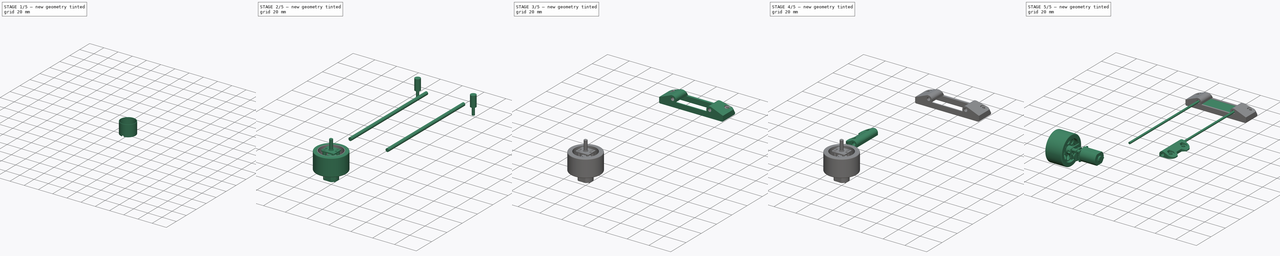
[diagram: build sequence overview — one tinted view per stage of 5, left to right]
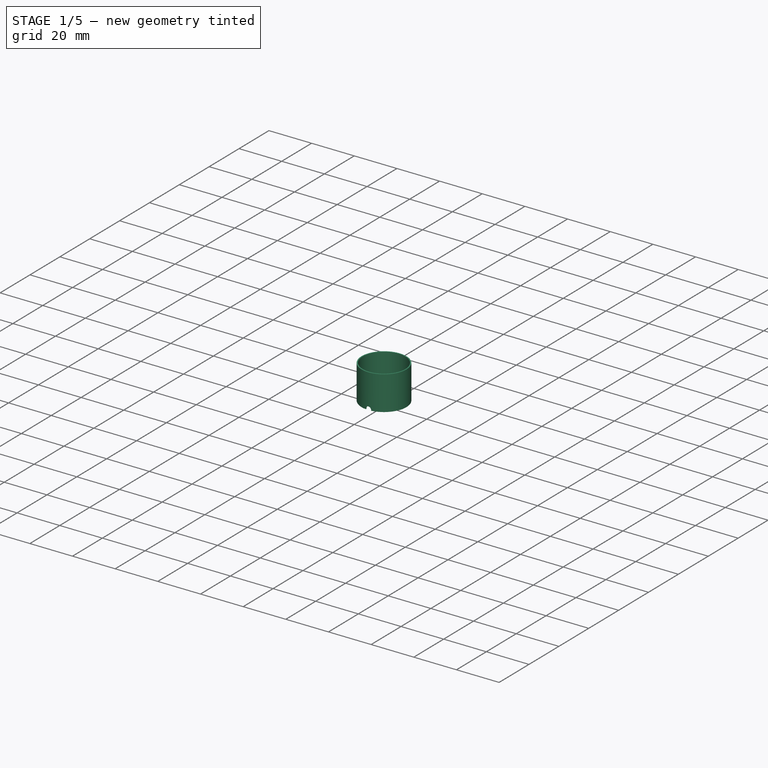
[diagram: stage 1 of 5 — iso view after this stage's code; geometry added in this stage tinted green]
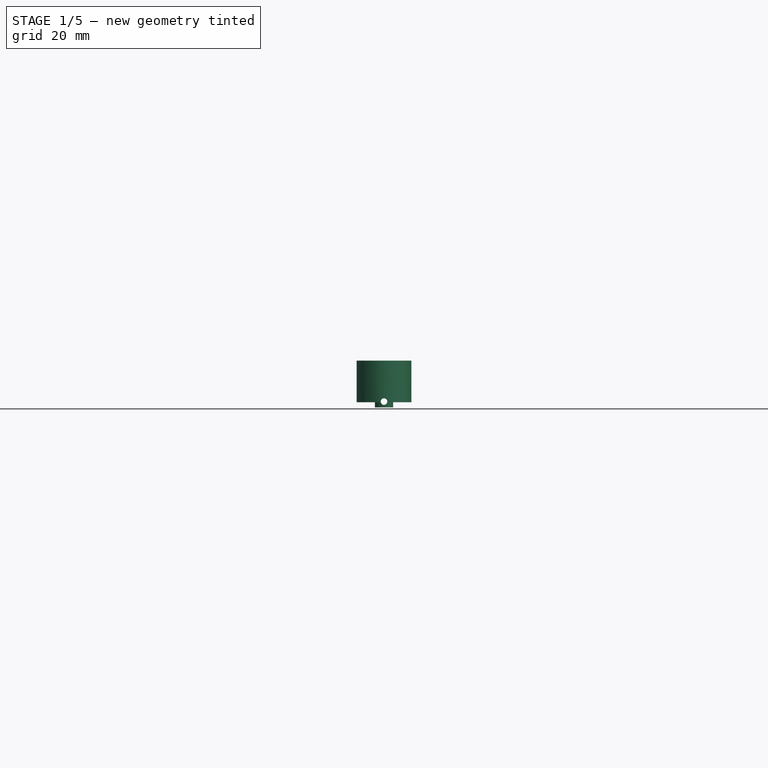
[diagram: stage 1 of 5 — front view after this stage's code; geometry added in this stage tinted green]
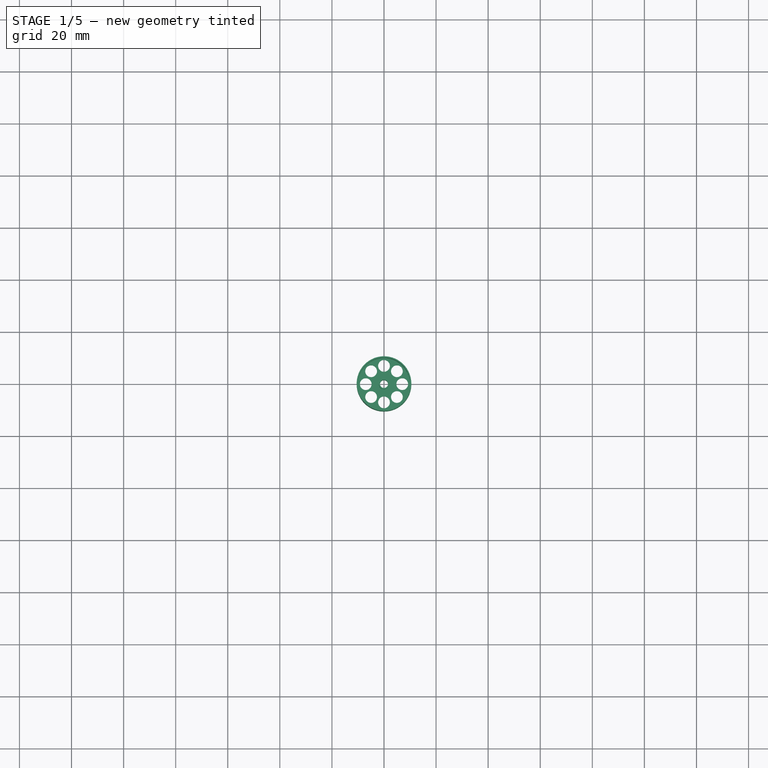
[diagram: stage 1 of 5 — top view after this stage's code; geometry added in this stage tinted green]
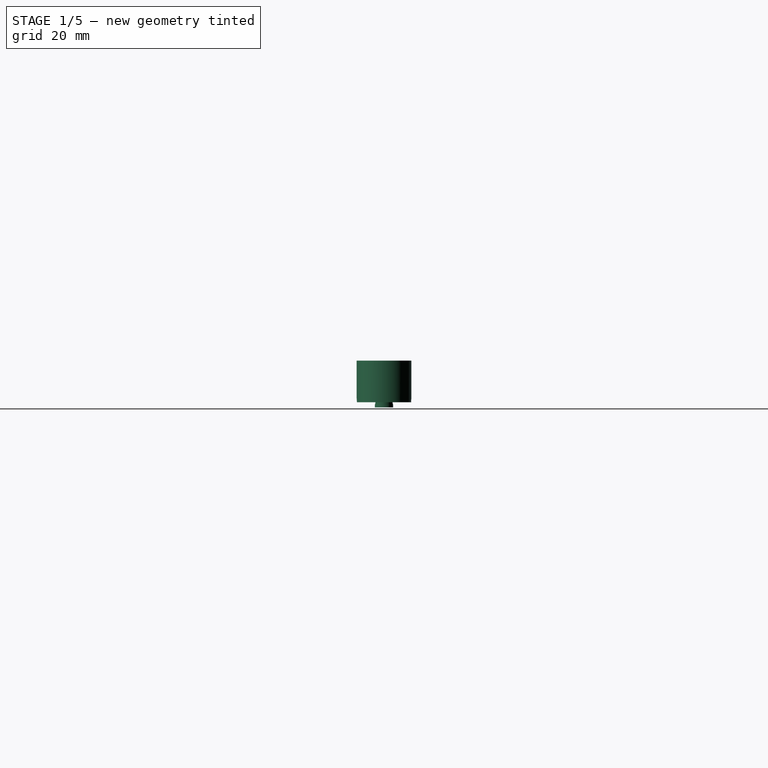
[diagram: stage 1 of 5 — right view after this stage's code; geometry added in this stage tinted green]
FCSTD DOCUMENT  (FreeCAD 0.17R13541 (Git))
Label: assembly
License: All rights reserved
LicenseURL: http://en.wikipedia.org/wiki/All_rights_reserved
objects: Part::Feature×24, Part::Cylinder×23, Part::Cut×13, Part::MultiFuse×10, Part::FeaturePython×7, Part::Fillet×5, Part::Box×5, PartDesign::FeatureBase×4, Sketcher::SketchObject×3, PartDesign::Pad×3, PartDesign::Body×3, Image::ImagePlane×2, Part::Prism×2, Part::Chamfer×1, App::VRMLObject×1, Part::MultiCommon×1, Part::Mirroring×1, App::DocumentObjectGroup×1
note: 108 computed .brp shape members not serialized (recipe doc carries the construction recipe); baked Part::Feature solids carry a one-line shape summary decoded from their .brp

FEATURE [Part::Feature] Part__Feature006  label="Pololu - 1_250 Micro gear motor006"
  shape: bbox 3 x 3 x 4 mm, 6 faces (baked)
FEATURE [Part::Feature] Part__Feature005  label="Pololu - 1_250 Micro gear motor005"
  shape: bbox 3 x 3 x 2 mm, 6 faces (baked)
FEATURE [Part::Feature] Part__Feature004  label="Pololu - 1_250 Micro gear motor004"
  shape: bbox 3 x 3 x 2 mm, 6 faces (baked)
FEATURE [Part::Feature] Part__Feature001  label="Pololu - 1_250 Micro gear motor001"
  shape: bbox 1 x 1 x 8 mm, 7 faces (baked)
FEATURE [Part::Feature] Part__Feature007  label="Pololu - 1_250 Micro gear motor007"
  shape: bbox 3 x 3 x 4 mm, 6 faces (baked)
FEATURE [Part::Feature] Part__Feature008  label="Pololu - 1_250 Micro gear motor008"
  shape: bbox 2 x 2 x 1.5 mm, 6 faces (baked)
FEATURE [Part::Feature] Part__Feature009  label="Pololu - 1_250 Micro gear motor009"
  shape: bbox 5.5 x 5.5 x 0.75 mm, 6 faces (baked)
FEATURE [Part::Feature] Part__Feature010  label="Pololu - 1_250 Micro gear motor010"
  shape: bbox 12 x 10 x 1 mm, 22 faces (baked)
FEATURE [Part::Feature] Part__Feature011  label="Pololu - 1_250 Micro gear motor011"
  shape: bbox 5.5 x 5.5 x 1 mm, 6 faces (baked)
FEATURE [Part::Feature] Part__Feature012  label="Pololu - 1_250 Micro gear motor012"
  shape: bbox 5.5 x 5.5 x 0.75 mm, 6 faces (baked)
FEATURE [Part::Feature] Part__Feature013  label="Pololu - 1_250 Micro gear motor013"
  shape: bbox 2 x 2 x 1.15 mm, 6 faces (baked)
FEATURE [Part::Feature] Part__Feature014  label="Pololu - 1_250 Micro gear motor014"
  shape: bbox 5.5 x 5.5 x 1 mm, 6 faces (baked)
FEATURE [Part::Feature] Part__Feature015  label="Pololu - 1_250 Micro gear motor015"
  shape: bbox 2 x 2 x 1.3 mm, 6 faces (baked)
FEATURE [Part::Feature] Part__Feature016  label="Pololu - 1_250 Micro gear motor016"
  shape: bbox 2.94 x 2.94 x 18.27 mm, 12 faces (baked)
FEATURE [Part::Feature] Part__Feature017  label="Pololu - 1_250 Micro gear motor017"
  shape: bbox 12 x 10 x 1.6 mm, 37 faces (baked)
FEATURE [Part::Feature] Part__Feature018  label="Pololu - 1_250 Micro gear motor018"
  shape: bbox 12 x 10 x 14 mm, 11 faces (baked)
FEATURE [Part::Feature] Part__Feature019  label="Pololu - 1_250 Micro gear motor019"
  shape: bbox 12 x 10 x 2.5 mm, 14 faces (baked)
FEATURE [Part::Feature] Part__Feature020  label="Pololu - 1_250 Micro gear motor020"
  shape: bbox 0.3 x 1.5 x 2 mm, 8 faces (baked)
FEATURE [Part::Feature] Part__Feature021  label="Pololu - 1_250 Micro gear motor021"
  shape: bbox 0.3 x 1.5 x 2 mm, 8 faces (baked)
FEATURE [Part::Feature] Part__Feature022  label="Pololu - 1_250 Micro gear motor022"
  shape: bbox 2.65 x 2.65 x 8.95 mm, 21 faces (baked)
FEATURE [Part::Feature] Part__Feature023  label="Pololu - 1_250 Micro gear motor023"
  shape: bbox 2.65 x 2.65 x 8.95 mm, 21 faces (baked)
FEATURE [Part::Cylinder] Cylinder036
  Angle = 360
  AttacherType = Attacher::AttachEngine3D
  Height = 16
  Radius = 10.5
FEATURE [Part::Cylinder] Cylinder037
  Angle = 360
  AttacherType = Attacher::AttachEngine3D
  Height = 16
  Placement = pos=(0,0,4) rot=(0,0,1;0rad)
  Radius = 10
FEATURE [Part::Cylinder] Cylinder038
  Angle = 360
  AttacherType = Attacher::AttachEngine3D
  Height = 30
  Placement = pos=(0,0,-10) rot=(0,0,1;0rad)
  Radius = 1.55
FEATURE [Part::Cylinder] Cylinder039
  Angle = 360
  AttacherType = Attacher::AttachEngine3D
  Height = 30
  Placement = pos=(7,0,-10) rot=(0,0,1;0rad)
  Radius = 2.25
FEATURE [Part::FeaturePython] Array002  # Draft array (typed FeaturePython)
  Angle = 360
  ArrayType = 1
  Axis = (0,0,1)
  Base = -> Cylinder039
  Center = (0,0,0)
  Fuse = false
  IntervalAxis = (0,0,0)
  IntervalX = (1,0,0)
  IntervalY = (0,1,0)
  IntervalZ = (0,0,0)
  NumberPolar = 8
  NumberX = 2
  NumberY = 2
  NumberZ = 1
FEATURE [Part::MultiFuse] Fusion033
  Shapes = -> [Cylinder038,Array002]
FEATURE [Part::Cylinder] Cylinder042
  Angle = 360
  AttacherType = Attacher::AttachEngine3D
  Height = 16
  Placement = pos=(0,0,-13) rot=(0,0,1;0rad)
  Radius = 10
FEATURE [Part::Cylinder] Cylinder043
  Angle = 360
  AttacherType = Attacher::AttachEngine3D
  Height = 5.5
  Placement = pos=(0,0,-2) rot=(0,0,1;0rad)
  Radius = 3.5
FEATURE [Part::Cylinder] Cylinder044
  Angle = 360
  AttacherType = Attacher::AttachEngine3D
  Height = 5.5
  Placement = pos=(0,0,3.5) rot=(0,0,1;0rad)
  Radius = 2
FEATURE [Part::Cylinder] Cylinder045
  Angle = 360
  AttacherType = Attacher::AttachEngine3D
  Height = 32
  Placement = pos=(0,15,0.25) rot=(1,0,0;1.5708rad)
  Radius = 1.25
FEATURE [Part::MultiFuse] Fusion034
  Shapes = -> [Cylinder037,Cylinder042]
FEATURE [Part::Cut] Cut028
  Base = -> Cylinder036
  Tool = -> Fusion034
FEATURE [Part::MultiFuse] Fusion035
  Shapes = -> [Cylinder044,Cylinder043,Cut028]
FEATURE [Part::Cut] Cut002
  Base = -> Fusion035
  Tool = -> Cylinder045
FEATURE [Part::Cut] Cut029
  Base = -> Cut002
  Tool = -> Fusion033
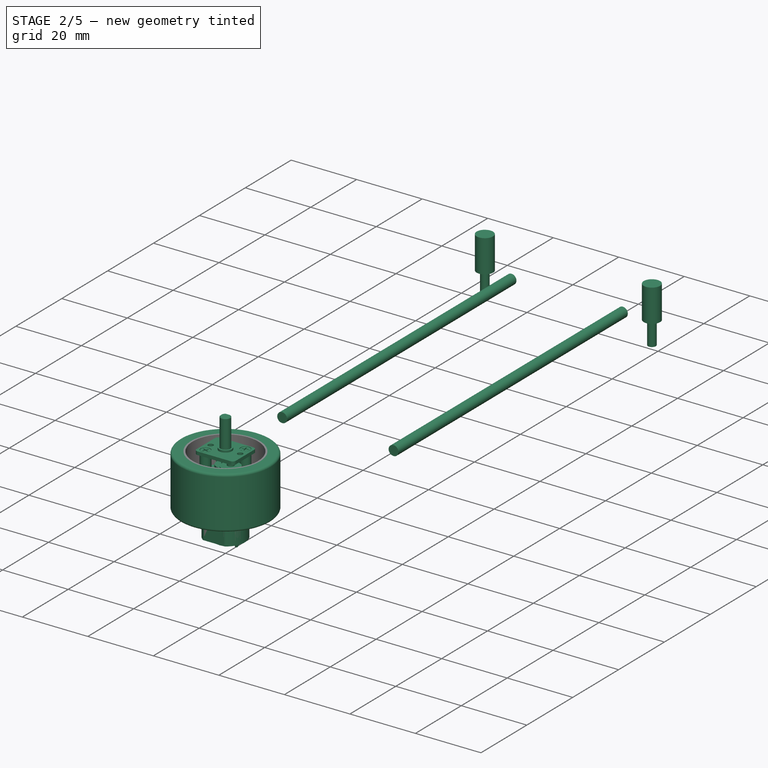
[diagram: stage 2 of 5 — iso view after this stage's code; geometry added in this stage tinted green]
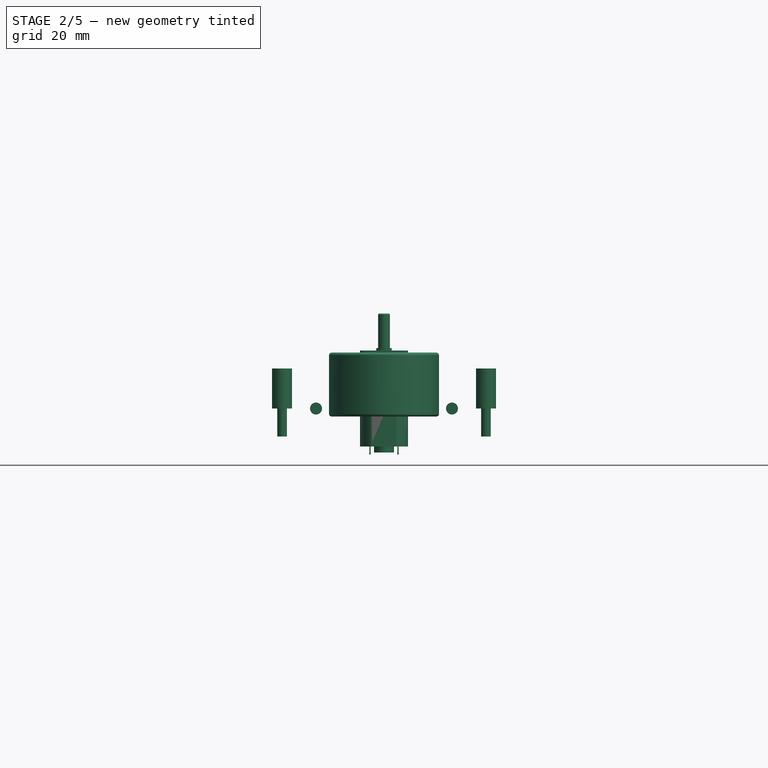
[diagram: stage 2 of 5 — front view after this stage's code; geometry added in this stage tinted green]
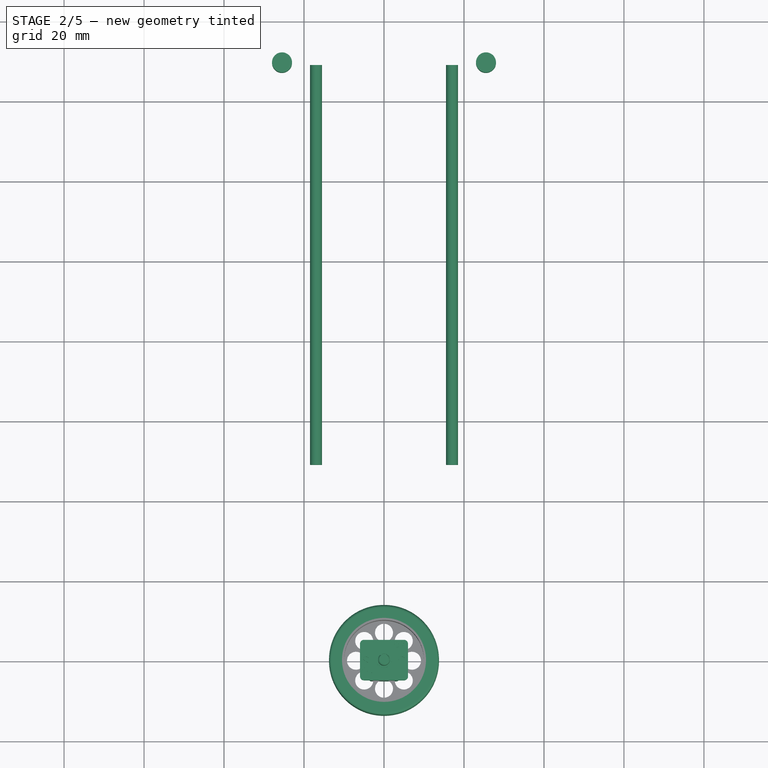
[diagram: stage 2 of 5 — top view after this stage's code; geometry added in this stage tinted green]
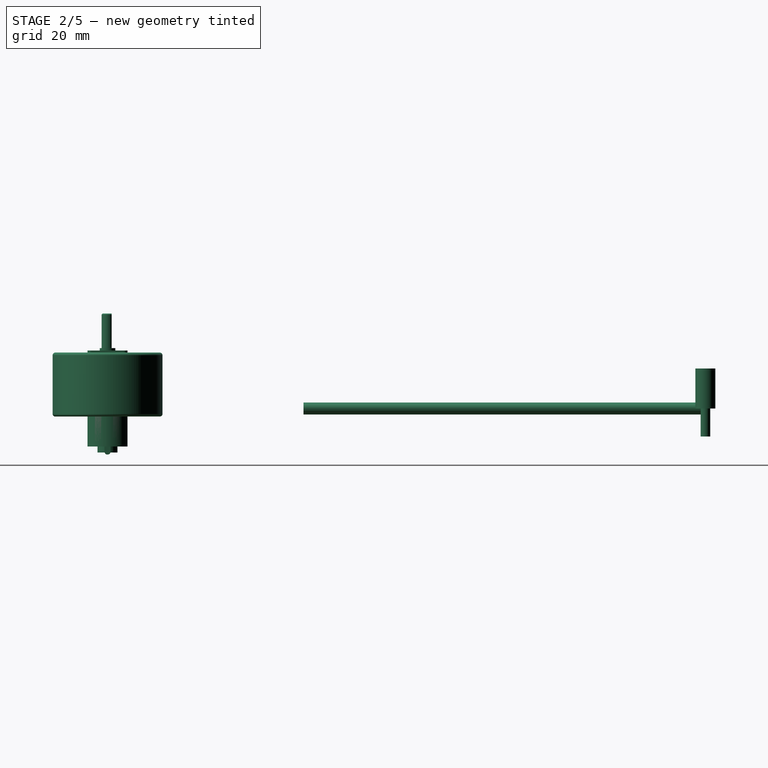
[diagram: stage 2 of 5 — right view after this stage's code; geometry added in this stage tinted green]
FEATURE [Part::Cylinder] Cylinder040
  Angle = 360
  AttacherType = Attacher::AttachEngine3D
  Height = 16
  Radius = 13.75
FEATURE [Part::Cylinder] Cylinder041
  Angle = 360
  AttacherType = Attacher::AttachEngine3D
  Height = 20
  Placement = pos=(0,0,-1) rot=(0,0,1;0rad)
  Radius = 10.5
FEATURE [Part::Cut] Cut027
  Base = -> Cylinder040
  Tool = -> Cylinder041
FEATURE [Image::ImagePlane] ImagePlane001
  Placement = pos=(59,0,5) rot=(0,1,0;1.5708rad)
  XSize = 24.321
  YSize = 25.058
FEATURE [Part::Feature] Part__Feature003  label="Pololu - 1_250 Micro gear motor003"
  shape: bbox 2 x 2 x 3 mm, 6 faces (baked)
FEATURE [Part::Feature] Part__Feature  label="Pololu - 1_250 Micro gear motor"
  shape: bbox 12 x 10 x 1 mm, 20 faces (baked)
FEATURE [Part::Feature] Part__Feature002  label="Pololu - 1_250 Micro gear motor002"
  shape: bbox 1 x 1 x 8 mm, 7 faces (baked)
FEATURE [Part::MultiFuse] Fusion  label="motor-src"
  Shapes = -> [Part__Feature,Part__Feature001,Part__Feature002,Part__Feature003,Part__Feature004,Part__Feature005,Part__Feature006,Part__Feature007,Part__Feature008,Part__Feature009,Part__Feature010,Part__Feature011,Part__Feature012,Part__Feature013,Part__Feature014,Part__Feature015,Part__Feature016,Part__Feature017,Part__Feature018,Part__Feature019,Part__Feature020,Part__Feature021,Part__Feature022,+1 more]
FEATURE [Part::Fillet] Fillet013  label="tire-src001"
  Base = -> Cut027
  Edges = 2 edges r=0.7: [Edge1,Edge3]
FEATURE [Part::Chamfer] Chamfer062
  Base = -> Cut029
  Edges = 3 edges: [Edge2 r=0.1,Edge6 r=0.3,Edge20 r=0.2]
FEATURE [Part::Cylinder] Cylinder053
  Angle = 360
  AttacherType = Attacher::AttachEngine3D
  Height = 10
  Placement = pos=(-25.5,2.5,0) rot=(0,0,1;0rad)
  Radius = 1.2
FEATURE [Part::Cylinder] Cylinder054
  Angle = 360
  AttacherType = Attacher::AttachEngine3D
  Height = 10
  Placement = pos=(25.5,2.5,0) rot=(0,0,1;0rad)
  Radius = 1.2
FEATURE [Part::MultiFuse] Fusion038
  Placement = pos=(0,147,-5) rot=(0,0,1;0rad)
  Shapes = -> [Cylinder053,Cylinder054]
FEATURE [Part::Cylinder] Cylinder055
  Angle = 360
  AttacherType = Attacher::AttachEngine3D
  Height = 100
  Placement = pos=(-17,49,2) rot=(-1,0,0;1.5708rad)
  Radius = 1.5
FEATURE [Part::Cylinder] Cylinder056
  Angle = 360
  AttacherType = Attacher::AttachEngine3D
  Height = 100
  Placement = pos=(17,49,2) rot=(-1,0,0;1.5708rad)
  Radius = 1.5
FEATURE [Part::Cylinder] Cylinder057
  Angle = 360
  AttacherType = Attacher::AttachEngine3D
  Height = 10
  Placement = pos=(-25.5,2.5,0) rot=(0,0,1;0rad)
  Radius = 2.5
FEATURE [Part::Cylinder] Cylinder058
  Angle = 360
  AttacherType = Attacher::AttachEngine3D
  Height = 10
  Placement = pos=(25.5,2.5,0) rot=(0,0,1;0rad)
  Radius = 2.5
FEATURE [Part::MultiFuse] Fusion040
  Placement = pos=(0,147,2) rot=(0,0,1;0rad)
  Shapes = -> [Cylinder057,Cylinder058]
FEATURE [Part::MultiFuse] Fusion041
  Shapes = -> [Fusion038,Fusion040]
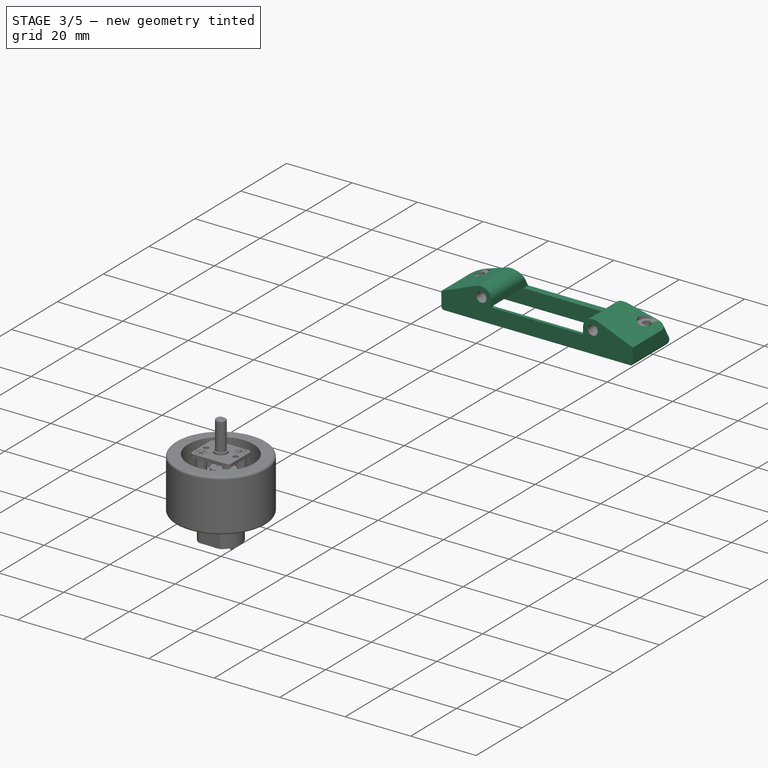
[diagram: stage 3 of 5 — iso view after this stage's code; geometry added in this stage tinted green]
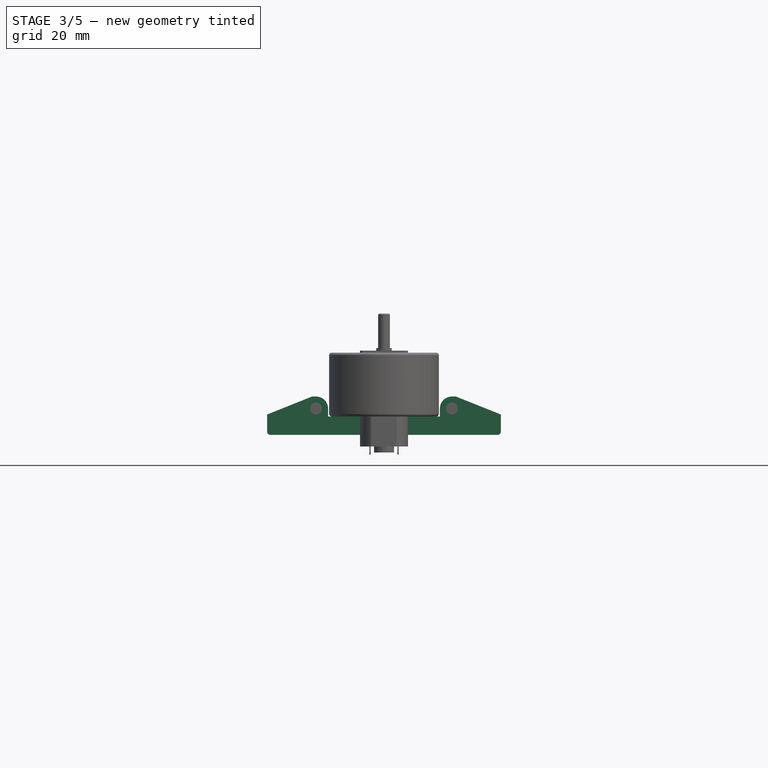
[diagram: stage 3 of 5 — front view after this stage's code; geometry added in this stage tinted green]
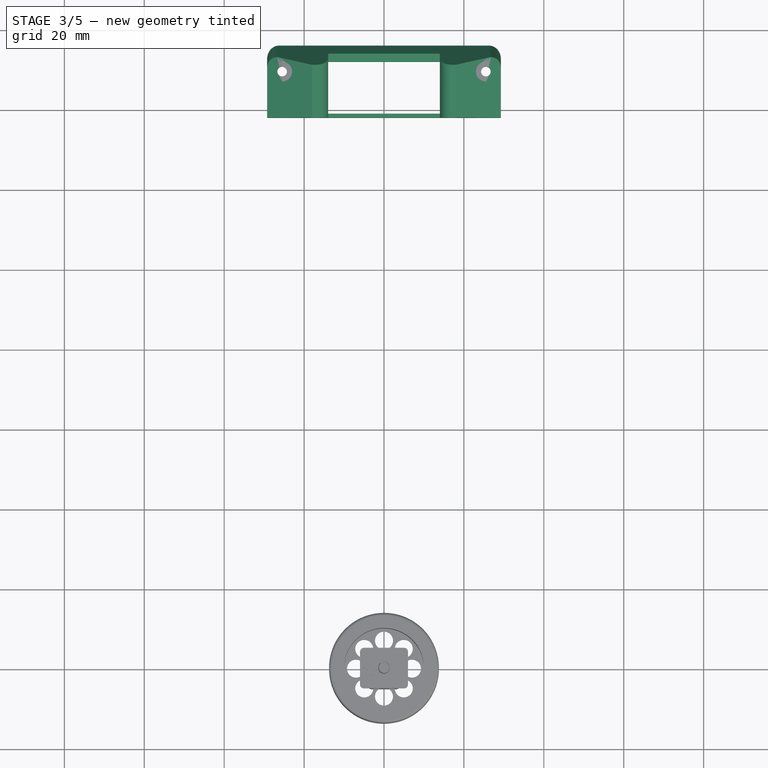
[diagram: stage 3 of 5 — top view after this stage's code; geometry added in this stage tinted green]
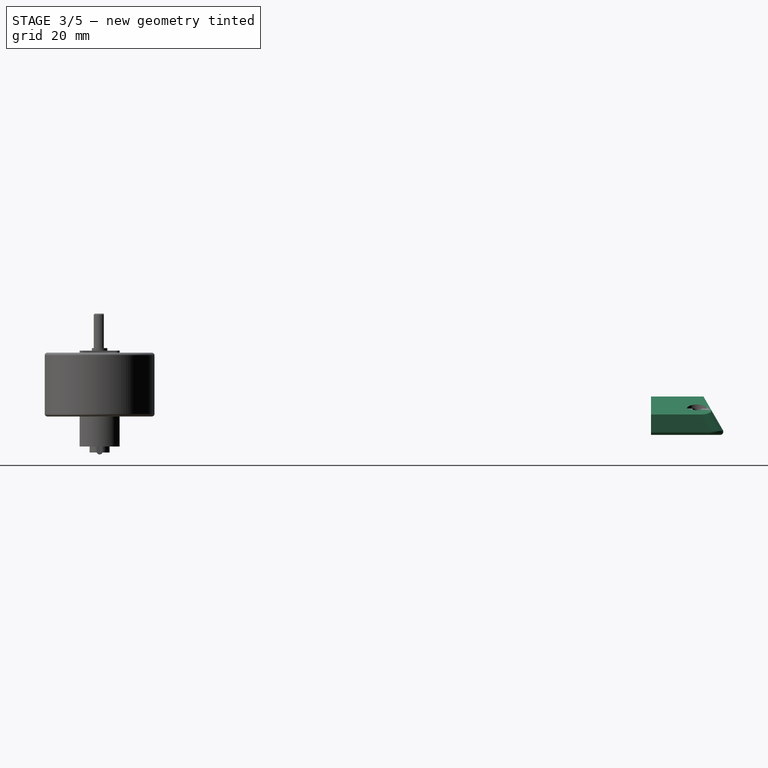
[diagram: stage 3 of 5 — right view after this stage's code; geometry added in this stage tinted green]
FEATURE [Part::Box] Box001  label="Cube001"
  AttacherType = Attacher::AttachEngine3D
  Height = 9.6
  Length = 58.5
  Placement = pos=(-29.25,138,-4.6) rot=(0,0,1;0rad)
  Width = 19.5
FEATURE [Part::Box] Box002  label="Cube002"
  AttacherType = Attacher::AttachEngine3D
  Height = 6.2
  Length = 56.5
  Placement = pos=(-28.25,139,-6) rot=(0,0,1;0rad)
  Width = 13
FEATURE [Part::Cut] Cut032
  Base = -> Box001
  Tool = -> Box002
FEATURE [Part::Box] Box003  label="Cube003"
  AttacherType = Attacher::AttachEngine3D
  Height = 10
  Length = 28
  Placement = pos=(-14,137,0) rot=(0,0,1;0rad)
  Width = 40
FEATURE [Part::Cut] Cut033
  Base = -> Cut032
  Tool = -> Box003
FEATURE [Part::Fillet] Fillet015
  Base = -> Cut033
  Edges = 2 edges r=3: [Edge13,Edge26]
FEATURE [Sketcher::SketchObject] Sketch002
  MapMode = 5
  Placement = pos=(0,0,0) rot=(1,0,0;1.5708rad)
  Support = -> [XZ_Plane002]
  sketch-geometry (9):
    g0: LineSegment StartX=-30.5 StartY=0 StartZ=0 EndX=-16 EndY=5.8 EndZ=0
    g1: LineSegment StartX=-16 StartY=5.8 StartZ=0 EndX=16 EndY=5.8 EndZ=0
    g2: LineSegment StartX=16 StartY=5.8 StartZ=0 EndX=30.5 EndY=0 EndZ=0
    g3: LineSegment StartX=30.5 StartY=0 StartZ=0 EndX=30.5 EndY=11 EndZ=0
    g4: LineSegment StartX=30.5 StartY=11 StartZ=0 EndX=-30.5 EndY=11 EndZ=0
    g5: LineSegment StartX=-30.5 StartY=11 StartZ=0 EndX=-30.5 EndY=0 EndZ=0
    g6: LineSegment [constr] StartX=-30.5 StartY=0 StartZ=0 EndX=30.5 EndY=0 EndZ=0
    g7: LineSegment [constr] StartX=-28 StartY=1 StartZ=0 EndX=28 EndY=1 EndZ=0
    g8: LineSegment [constr] StartX=-18 StartY=5 StartZ=0 EndX=18 EndY=5 EndZ=0
  constraints (27):
    c: Coincident(g0,g1)
    c: Coincident(g1,g2)
    c: Vertical(g3)
    c: Coincident(g3,g4)
    c: Horizontal(g4)
    c: Coincident(g4,g5)
    c: Coincident(g5,g0)
    c: Vertical(g5)
    c: Coincident(g2,g3)
    c: Equal(g0,g2)
    c: Distance(g1) = 32
    c: Symmetric(g0,g1,g-2)
    c: Coincident(g0,g6)
    c: Coincident(g6,g2)
    c: Horizontal(g6)
    c: PointOnObject(g7,g0)
    c: PointOnObject(g7,g2)
    c: Horizontal(g7)
    c: Distance(g7) = 56
    c: DistanceY(g2,g7) = 1
    c: PointOnObject(g8,g0)
    c: PointOnObject(g8,g2)
    c: Horizontal(g8)
    c: Distance(g8) = 36
    c: DistanceY(g2,g8) = 5
    c: Distance(g3) = 11
    c: PointOnObject(g2,g-1)
FEATURE [PartDesign::Pad] Pad002
  Length = 40
  Length2 = 100
  Placement = pos=(0,0,0) rot=(1,0,0;1.5708rad)
  Profile = -> Sketch002
  Reversed = true
  Type = 0
FEATURE [PartDesign::Body] Body002
  Group = -> [Sketch002,Pad002]
  Origin = -> Origin002
  Placement = pos=(0,127,0) rot=(0,0,1;0rad)
  Tip = -> Pad002
FEATURE [PartDesign::FeatureBase] Clone057
  BaseFeature = -> Pad002
  Placement = pos=(0,129,0) rot=(1,0,0;1.5708rad)
FEATURE [Part::Box] Box004  label="Cube004"
  AttacherType = Attacher::AttachEngine3D
  Height = 20
  Length = 70
  Placement = pos=(-35,157.5,-6) rot=(1,0,0;0.523599rad)
  Width = 10
FEATURE [Part::Cut] Cut034
  Base = -> Fillet015
  Tool = -> Box004
FEATURE [Part::Fillet] Fillet016
  Base = -> Cut034
  Edges = 5 edges: [Edge16 r=3,Edge17 r=0.8,Edge24 r=0.8,Edge25 r=0.8,Edge33 r=3]
FEATURE [Part::Cut] Cut035
  Base = -> Fillet016
  Tool = -> Clone057
FEATURE [Part::MultiFuse] Fusion039
  Shapes = -> [Cylinder055,Cylinder056]
FEATURE [Part::Cut] Cut036
  Base = -> Cut035
  Tool = -> Fusion039
FEATURE [Part::Cut] Cut037
  Base = -> Cut036
  Tool = -> Fusion041
FEATURE [Image::ImagePlane] ImagePlane002  label="ImagePlane003"
  Placement = pos=(-59,0,5) rot=(-0.707107,0,0.707107;3.14159rad)
  XSize = 24.321
  YSize = 25.058
FEATURE [App::DocumentObjectGroup] Group  label="wheels"
  Group = -> [Fusion,Fillet013,Chamfer062]
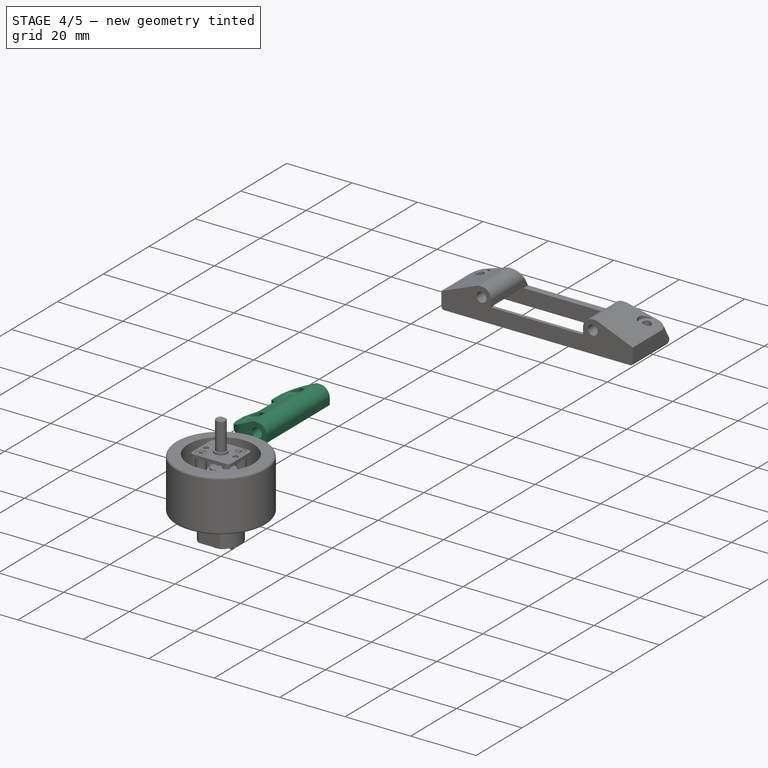
[diagram: stage 4 of 5 — iso view after this stage's code; geometry added in this stage tinted green]
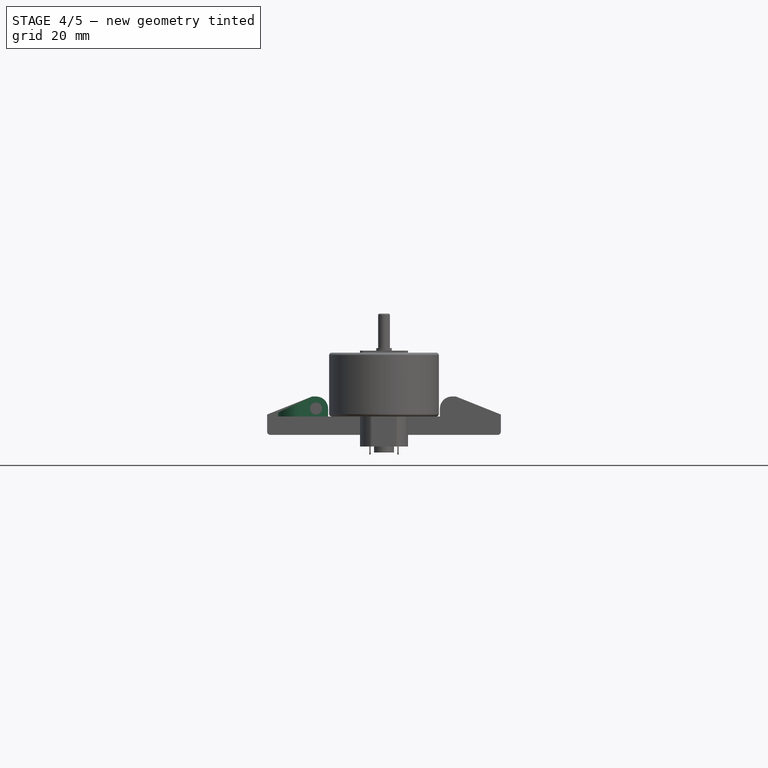
[diagram: stage 4 of 5 — front view after this stage's code; geometry added in this stage tinted green]
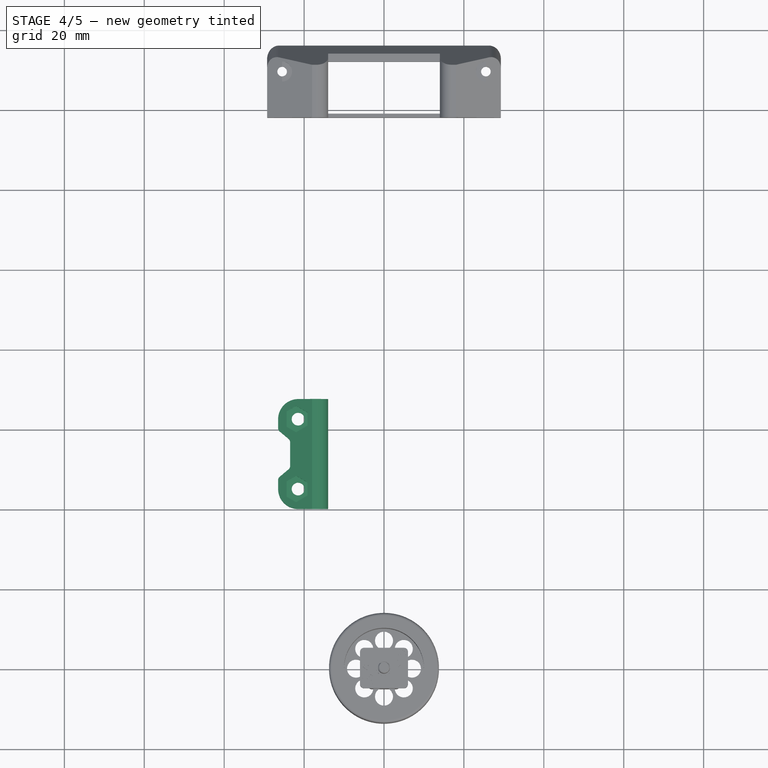
[diagram: stage 4 of 5 — top view after this stage's code; geometry added in this stage tinted green]
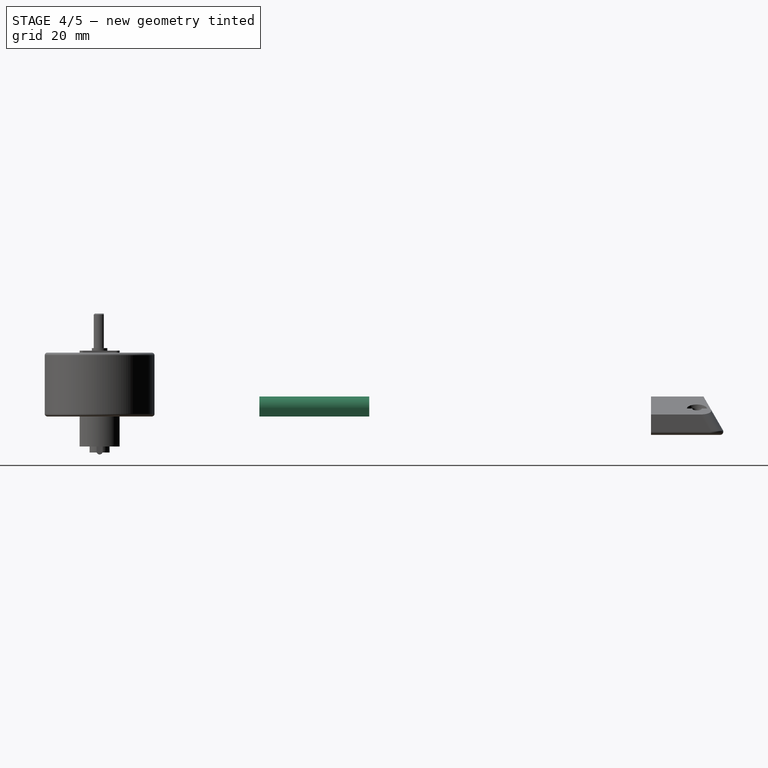
[diagram: stage 4 of 5 — right view after this stage's code; geometry added in this stage tinted green]
FEATURE [Sketcher::SketchObject] Sketch
  MapMode = 5
  Support = -> [XY_Plane]
  sketch-geometry (9):
    g0: LineSegment StartX=-14 StartY=67.5 StartZ=0 EndX=-26.5 EndY=67.5 EndZ=0
    g1: LineSegment StartX=-26.5 StartY=40 StartZ=0 EndX=-14 EndY=40 EndZ=0
    g2: LineSegment StartX=-14 StartY=40 StartZ=0 EndX=-14 EndY=67.5 EndZ=0
    g3: LineSegment StartX=-26.5 StartY=67.5 StartZ=0 EndX=-26.5 EndY=59.75 EndZ=0
    g4: LineSegment StartX=-26.5 StartY=59.75 StartZ=0 EndX=-23.5 EndY=57.25 EndZ=0
    g5: LineSegment StartX=-23.5 StartY=57.25 StartZ=0 EndX=-23.5 EndY=50.25 EndZ=0
    g6: LineSegment StartX=-23.5 StartY=50.25 StartZ=0 EndX=-26.5 EndY=47.75 EndZ=0
    g7: LineSegment StartX=-26.5 StartY=47.75 StartZ=0 EndX=-26.5 EndY=40 EndZ=0
    g8: LineSegment [constr] StartX=-26.5 StartY=59.75 StartZ=0 EndX=-26.5 EndY=47.75 EndZ=0
  constraints (26):
    c: Horizontal(g0)
    c: Coincident(g1,g2)
    c: Coincident(g2,g0)
    c: Vertical(g2)
    c: Distance(g2) = 27.5
    c: Distance(g0) = 12.5
    c: Horizontal(g1)
    c: DistanceX(g1,g-1) = 14
    c: DistanceY(g-1,g1) = 40
    c: Coincident(g0,g3)
    c: Vertical(g3)
    c: Coincident(g3,g4)
    c: Coincident(g4,g5)
    c: Vertical(g5)
    c: Coincident(g5,g6)
    c: Coincident(g6,g7)
    c: Coincident(g7,g1)
    c: Vertical(g7)
    c: Equal(g7,g3)
    c: Equal(g4,g6)
    c: Coincident(g8,g3)
    c: Coincident(g8,g6)
    c: Vertical(g8)
    c: DistanceX(g3,g4) = 3
    c: Distance(g5) = 7
    c: Distance(g8) = 12
FEATURE [PartDesign::Pad] Pad
  Length = 5
  Length2 = 100
  Profile = -> Sketch
  Type = 0
FEATURE [PartDesign::Body] Body
  Group = -> [Sketch,Pad]
  Origin = -> Origin
  Tip = -> Pad
FEATURE [Sketcher::SketchObject] Sketch001
  MapMode = 5
  Placement = pos=(0,0,0) rot=(1,0,0;1.5708rad)
  Support = -> [XZ_Plane001]
  sketch-geometry (5):
    g0: LineSegment StartX=-35 StartY=-3 StartZ=0 EndX=-13 EndY=7.35294 EndZ=0
    g1: LineSegment [constr] StartX=-18 StartY=5 StartZ=0 EndX=-13 EndY=5 EndZ=0
    g2: LineSegment StartX=-13 StartY=7.35294 StartZ=0 EndX=-13 EndY=-3 EndZ=0
    g3: LineSegment StartX=-13 StartY=-3 StartZ=0 EndX=-35 EndY=-3 EndZ=0
    g4: LineSegment [constr] StartX=-26.5 StartY=-3 StartZ=0 EndX=-26.5 EndY=1 EndZ=0
  constraints (17):
    c: Horizontal(g1)
    c: Vertical(g2)
    c: Coincident(g2,g3)
    c: Horizontal(g3)
    c: Distance(g1) = 5
    c: DistanceY(g2,g-1) = 3
    c: DistanceX(g2,g-1) = 13
    c: PointOnObject(g1,g0)
    c: PointOnObject(g1,g2)
    c: Coincident(g2,g0)
    c: Distance(g1,g2) = 8
    c: PointOnObject(g4,g3)
    c: PointOnObject(g4,g0)
    c: Vertical(g4)
    c: Distance(g4) = 4
    c: Distance(g2,g4) = 13.5
    c: Coincident(g0,g3)
FEATURE [PartDesign::Pad] Pad001
  Length = 30
  Length2 = 100
  Placement = pos=(0,0,0) rot=(1,0,0;1.5708rad)
  Profile = -> Sketch001
  Reversed = true
  Type = 0
FEATURE [PartDesign::Body] Body001
  Group = -> [Sketch001,Pad001]
  Origin = -> Origin001
  Placement = pos=(0,40,0) rot=(0,0,1;0rad)
  Tip = -> Pad001
FEATURE [PartDesign::FeatureBase] Clone054
  BaseFeature = -> Pad001
  Placement = pos=(0,40,0) rot=(1,0,0;1.5708rad)
FEATURE [PartDesign::FeatureBase] Clone055
  BaseFeature = -> Pad
FEATURE [Part::MultiCommon] Common
  Shapes = -> [Clone055,Clone054]
FEATURE [Part::Fillet] Fillet
  Base = -> Common
  Edges = 2 edges r=5: [Edge2,Edge27]
FEATURE [Part::Fillet] Fillet014
  Base = -> Fillet
  Edges = 5 edges: [Edge18 r=3,Edge28 r=1,Edge30 r=1,Edge32 r=1,Edge33 r=1]
FEATURE [Part::Cylinder] Cylinder049
  Angle = 360
  AttacherType = Attacher::AttachEngine3D
  Height = 10
  Placement = pos=(-21.5,45,-5) rot=(0,0,1;0rad)
  Radius = 1.6
FEATURE [Part::Cylinder] Cylinder050
  Angle = 360
  AttacherType = Attacher::AttachEngine3D
  Height = 10
  Placement = pos=(-21.5,62.5,-5) rot=(0,0,1;0rad)
  Radius = 1.6
FEATURE [Part::Prism] Prism
  AttacherType = Attacher::AttachEngine3D
  Circumradius = 3.3
  Height = 10
  Placement = pos=(-22,45,2) rot=(0,0,1;0.523599rad)
  Polygon = 6
FEATURE [Part::Prism] Prism001
  AttacherType = Attacher::AttachEngine3D
  Circumradius = 3.3
  Height = 10
  Placement = pos=(-22,62.5,2) rot=(0,0,1;0.523599rad)
  Polygon = 6
FEATURE [Part::MultiFuse] Fusion037
  Shapes = -> [Prism001,Prism,Cylinder049,Cylinder050]
FEATURE [Part::Cut] Cut030
  Base = -> Fillet014
  Tool = -> Fusion037
FEATURE [Part::Cylinder] Cylinder051
  Angle = 360
  AttacherType = Attacher::AttachEngine3D
  Height = 100
  Placement = pos=(-17,39,2) rot=(-1,0,0;1.5708rad)
  Radius = 1.5
FEATURE [Part::Cut] Cut031
  Base = -> Cut030
  Tool = -> Cylinder051
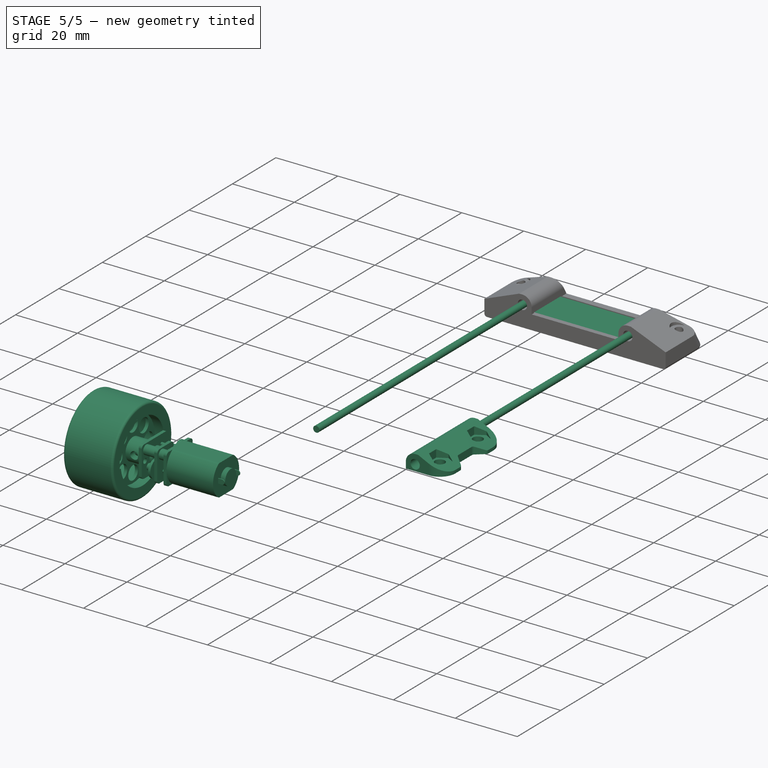
[diagram: stage 5 of 5 — iso view after this stage's code; geometry added in this stage tinted green]
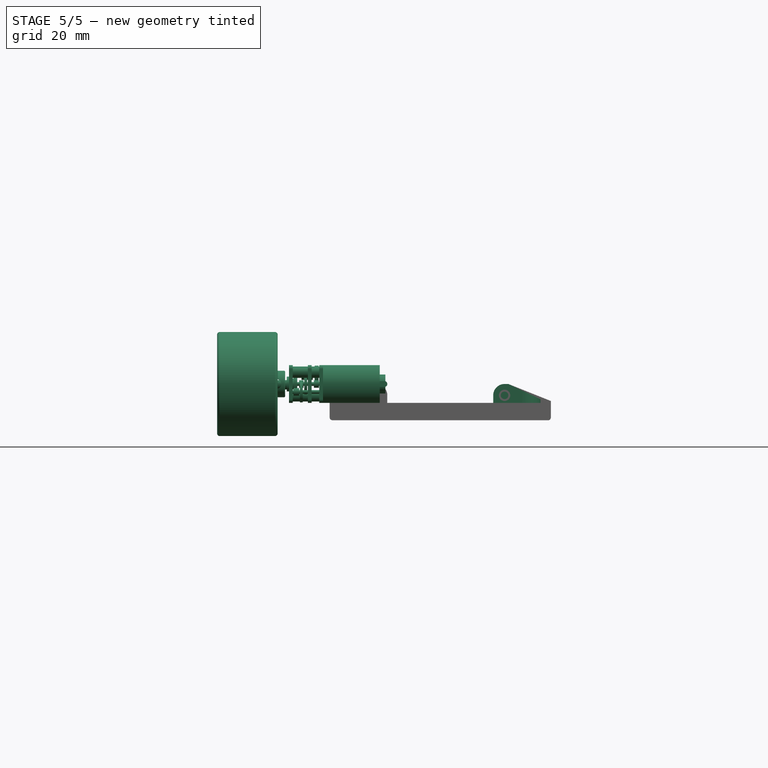
[diagram: stage 5 of 5 — front view after this stage's code; geometry added in this stage tinted green]
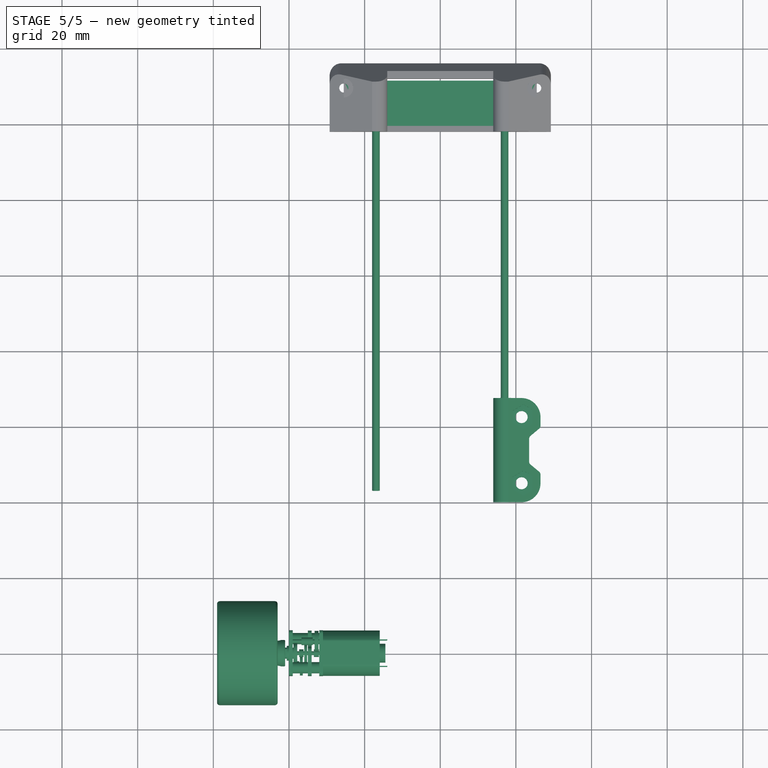
[diagram: stage 5 of 5 — top view after this stage's code; geometry added in this stage tinted green]
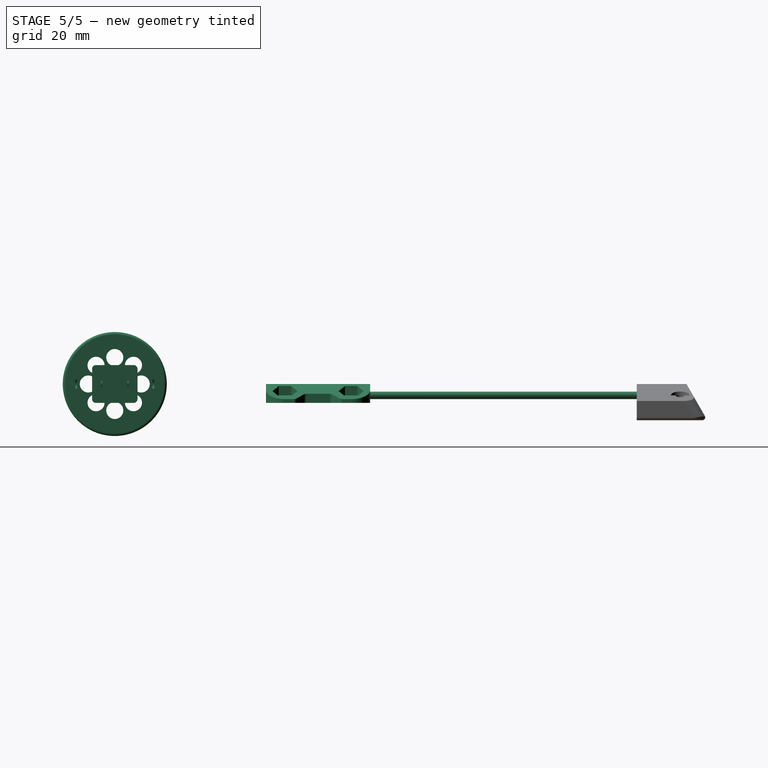
[diagram: stage 5 of 5 — right view after this stage's code; geometry added in this stage tinted green]
FEATURE [Part::FeaturePython] Clone050  label="right-motor"  # Draft clone (typed FeaturePython)
  Objects = -> [Fusion]
  Placement = pos=(23.5,0,5) rot=(0.57735,0.57735,0.57735;2.0944rad)
  Scale = (1,1,1)
FEATURE [Part::FeaturePython] Clone043  label="right-wheel"  # Draft clone (typed FeaturePython)
  Objects = -> [Fillet013]
  Placement = pos=(43,0,5) rot=(0,1,0;1.5708rad)
  Scale = (1,1,1)
FEATURE [Part::FeaturePython] Clone044  label="right-tire"  # Draft clone (typed FeaturePython)
  Objects = -> [Chamfer062]
  Placement = pos=(43,0,5) rot=(0,1,0;1.5708rad)
  Scale = (1,1,1)
FEATURE [App::VRMLObject] maquiavelo001  label="pcb"
  Placement = pos=(91.5,-78,-0.8) rot=(0,0,1;3.14159rad)
FEATURE [Part::FeaturePython] Clone  label="left-wheel"  # Draft clone (typed FeaturePython)
  AttacherType = Attacher::AttachEngine3D
  Fuse = false
  Objects = -> [Clone044]
  Placement = pos=(-43,0,5) rot=(0.707107,0,-0.707107;3.14159rad)
  Scale = (1,1,1)
FEATURE [Part::FeaturePython] Clone051  label="left-tire"  # Draft clone (typed FeaturePython)
  AttacherType = Attacher::AttachEngine3D
  Fuse = false
  Objects = -> [Clone043]
  Placement = pos=(-43,0,5) rot=(0.707107,0,-0.707107;3.14159rad)
  Scale = (1,1,1)
FEATURE [Part::FeaturePython] Clone053  label="left-motor"  # Draft clone (typed FeaturePython)
  AttacherType = Attacher::AttachEngine3D
  Fuse = false
  Objects = -> [Clone050]
  Placement = pos=(-23.5,0,5) rot=(0.57735,-0.57735,-0.57735;2.0944rad)
  Scale = (1,1,1)
FEATURE [Part::Cylinder] Cylinder  label="left-tube"
  Angle = 360
  AttacherType = Attacher::AttachEngine3D
  Height = 100
  Placement = pos=(-17,43,2) rot=(-1,0,0;1.5708rad)
  Radius = 1
FEATURE [Part::Cylinder] Cylinder046  label="right-tube"
  Angle = 360
  AttacherType = Attacher::AttachEngine3D
  Height = 100
  Placement = pos=(17,43,2) rot=(-1,0,0;1.5708rad)
  Radius = 1
FEATURE [Part::Box] Box  label="Cube"
  AttacherType = Attacher::AttachEngine3D
  Height = 1.6
  Length = 51
  Placement = pos=(-25.5,0,0) rot=(0,0,1;0rad)
  Width = 12.5
  expr: Placement.Base.x = -Length / 2
FEATURE [Part::Cylinder] Cylinder047
  Angle = 360
  AttacherType = Attacher::AttachEngine3D
  Height = 10
  Placement = pos=(23,2.5,0) rot=(0,0,1;0rad)
  Radius = 2
FEATURE [Part::Cylinder] Cylinder048
  Angle = 360
  AttacherType = Attacher::AttachEngine3D
  Height = 10
  Placement = pos=(-23,2.5,0) rot=(0,0,1;0rad)
  Radius = 2
FEATURE [Part::MultiFuse] Fusion036
  Shapes = -> [Cylinder048,Cylinder047]
FEATURE [Part::Cut] Cut  label="sensor"
  Base = -> Box
  Placement = pos=(0,139,-1.6) rot=(0,0,1;0rad)
  Tool = -> Fusion036
FEATURE [PartDesign::FeatureBase] Clone056
  BaseFeature = -> Cut031
FEATURE [Part::Mirroring] Part__Mirroring  label="Clone056 (Mirror #1)"
  Base = (0,0,0)
  Normal = (1,0,0)
  Source = -> Clone056
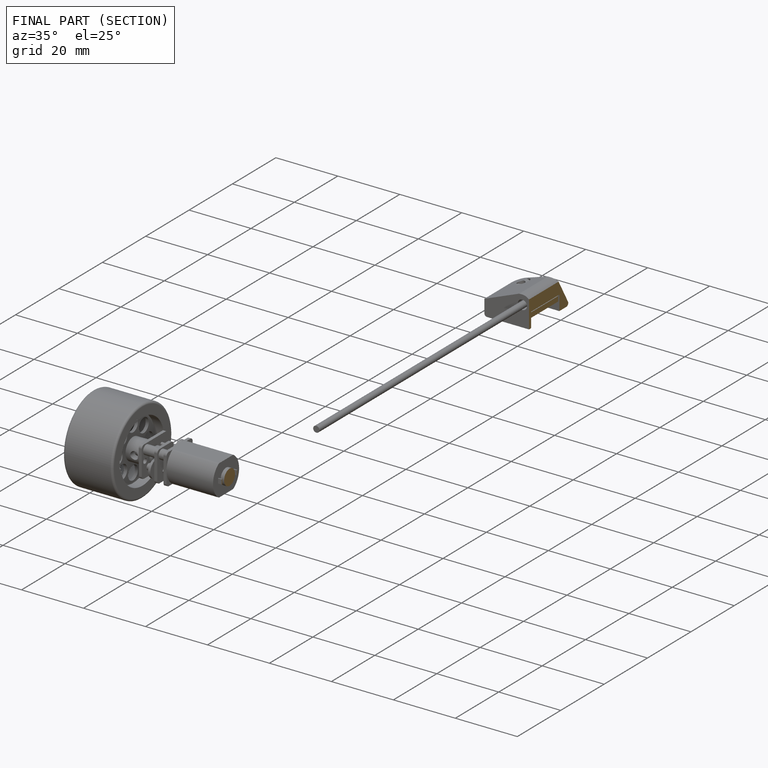
[diagram: finished part — half-section view (interior)]
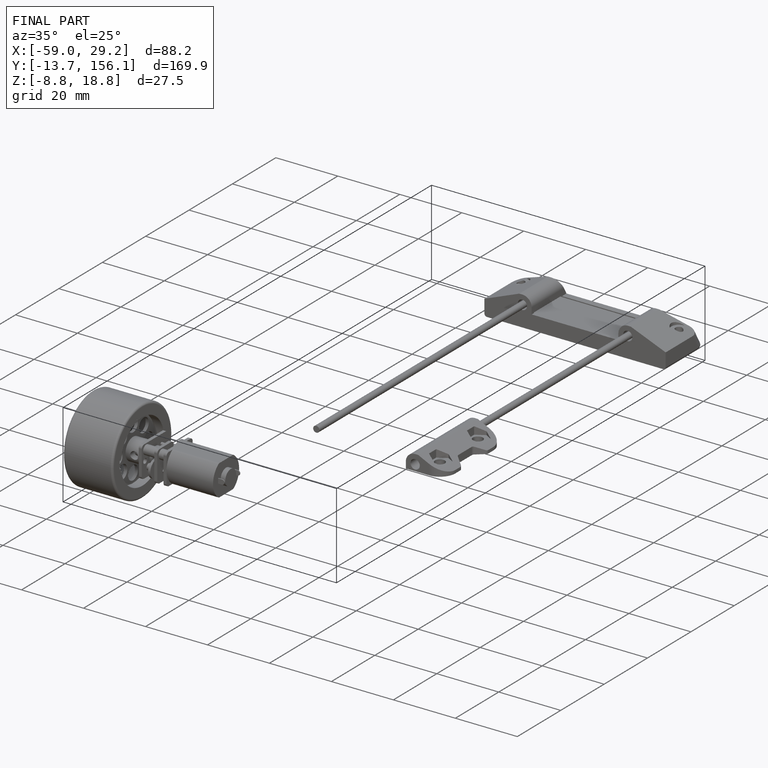
[diagram: finished part — iso view with bounding-box wireframe]
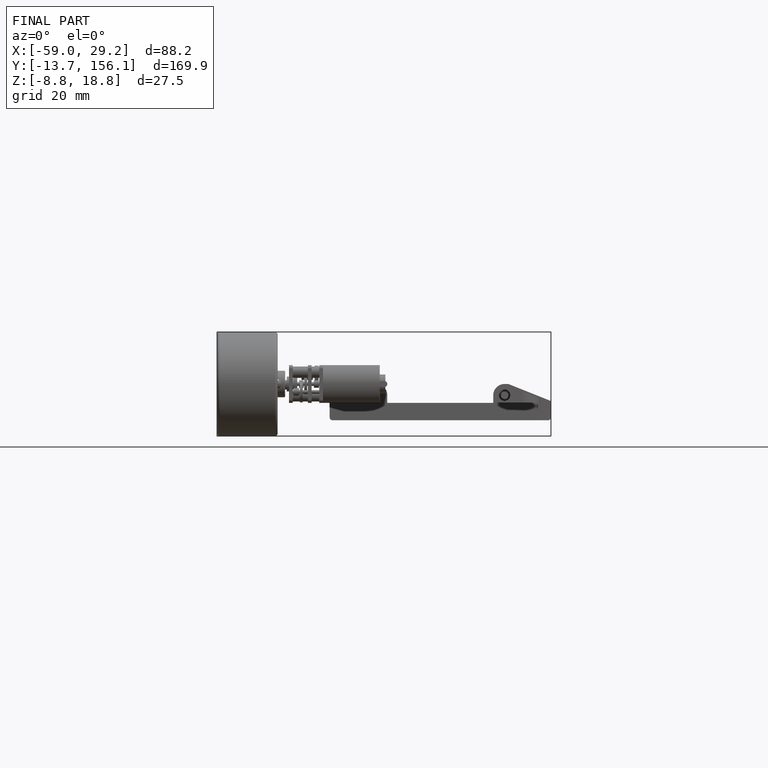
[diagram: finished part — front view with bounding-box wireframe]
